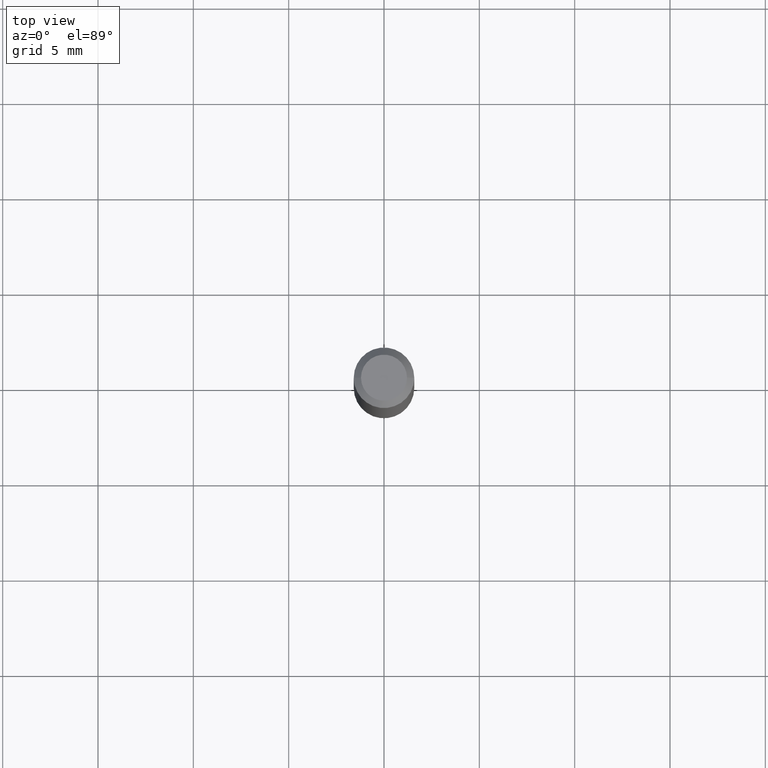
[diagram: clean part render]
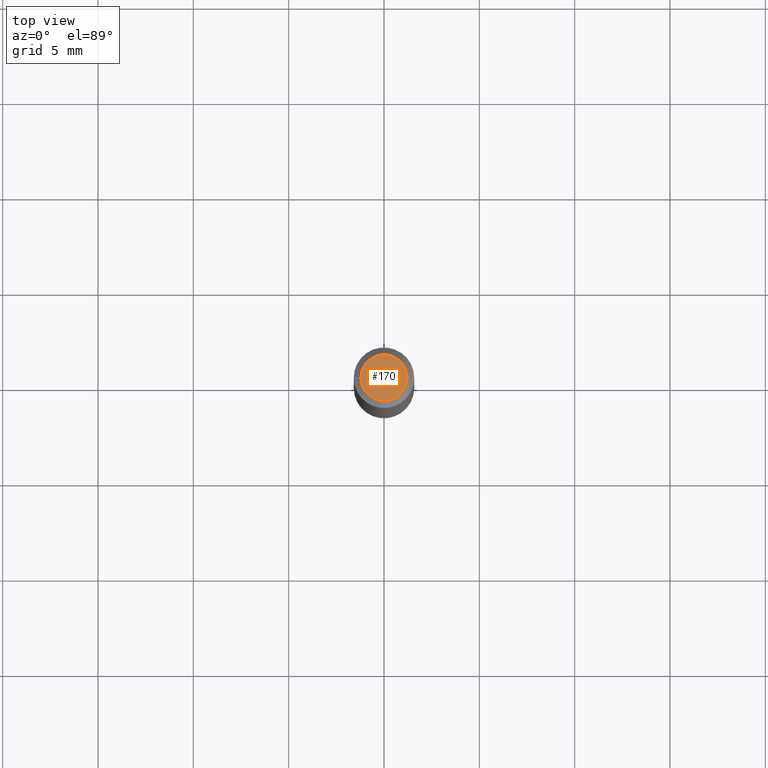
[diagram: same view with one face highlighted and labeled with its STEP entity id]
A machine part, top view. The second image highlights one B-rep face of the part: STEP entity #170.
In plain terms, the highlighted planar face has unit normal (0, -0, -1).
Its self-contained STEP definition (entity closure, byte-faithful):
#13 = CARTESIAN_POINT ( 'NONE',  ( 3.316907271900976096E-16, 0.04749999999999999362, -1.260221205212306812E-18 ) ) ;
#21 = EDGE_CURVE ( 'NONE', #452, #183, #375, .T. ) ;
#35 = AXIS2_PLACEMENT_3D ( 'NONE', #138, #179, #39 ) ;
#39 = DIRECTION ( 'NONE',  ( 1.000000000000000000, -6.982962677686267499E-15, 4.852736867747366768E-29 ) ) ;
#44 = DIRECTION ( 'NONE',  ( -1.000000000000000000, 6.982962677686265922E-15, -4.876176775795935793E-29 ) ) ;
#53 = AXIS2_PLACEMENT_3D ( 'NONE', #13, #294, #44 ) ;
#66 = CARTESIAN_POINT ( 'NONE',  ( 0.04749999999999999362, -4.035134999187572707E-16, 3.291702847796767504E-16 ) ) ;
#78 = PLANE ( 'NONE',  #53 ) ;
#138 = CARTESIAN_POINT ( 'NONE',  ( -8.049756633517713463E-45, 1.149291906609916432E-30, 3.291702847796741866E-16 ) ) ;
#170 = ADVANCED_FACE ( 'NONE', ( #362 ), #78, .F. ) ;
#179 = DIRECTION ( 'NONE',  ( -2.445468806185136597E-29, 3.491481338843145583E-15, 1.000000000000000000 ) ) ;
#183 = VERTEX_POINT ( 'NONE', #395 ) ;
#218 = ORIENTED_EDGE ( 'NONE', *, *, #432, .T. ) ;
#284 = AXIS2_PLACEMENT_3D ( 'NONE', #383, #427, #424 ) ;
#294 = DIRECTION ( 'NONE',  ( 2.438088387897960049E-29, -3.491481338843145188E-15, -1.000000000000000000 ) ) ;
#316 = ORIENTED_EDGE ( 'NONE', *, *, #21, .T. ) ;
#328 = CIRCLE ( 'NONE', #284, 0.04749999999999999362 ) ;
#362 = FACE_OUTER_BOUND ( 'NONE', #386, .T. ) ;
#375 = CIRCLE ( 'NONE', #35, 0.04749999999999999362 ) ;
#383 = CARTESIAN_POINT ( 'NONE',  ( -8.049756633517713463E-45, 1.149291906609916432E-30, 3.291702847796741866E-16 ) ) ;
#386 = EDGE_LOOP ( 'NONE', ( #218, #316 ) ) ;
#395 = CARTESIAN_POINT ( 'NONE',  ( -0.04749999999999999362, 3.578768372314216422E-16, 3.291702847796717707E-16 ) ) ;
#424 = DIRECTION ( 'NONE',  ( 1.000000000000000000, -6.982962677686267499E-15, 4.852736867747366768E-29 ) ) ;
#427 = DIRECTION ( 'NONE',  ( -2.445468806185136597E-29, 3.491481338843145583E-15, 1.000000000000000000 ) ) ;
#432 = EDGE_CURVE ( 'NONE', #183, #452, #328, .T. ) ;
#452 = VERTEX_POINT ( 'NONE', #66 ) ;